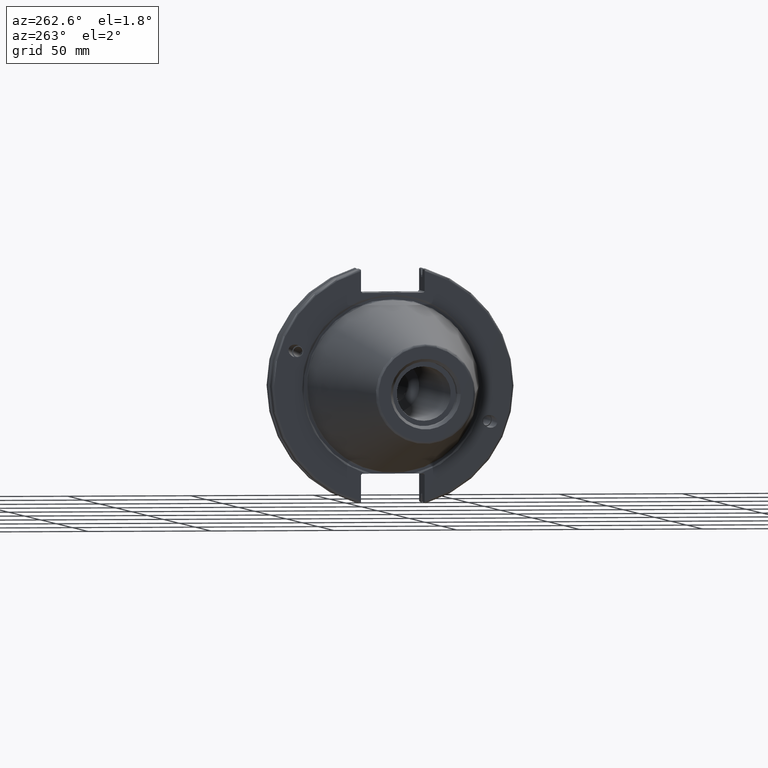
[diagram: clean part render]
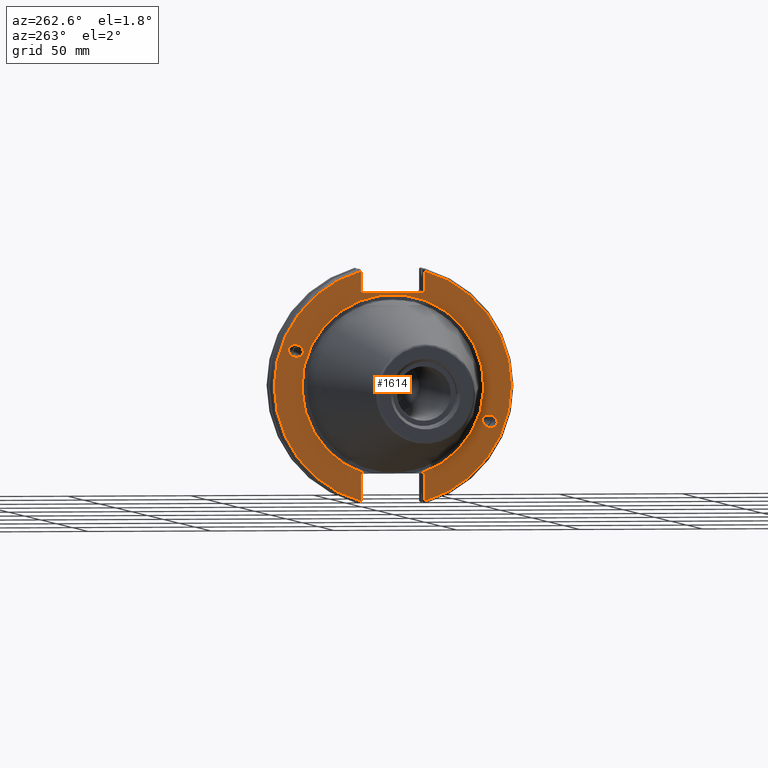
[diagram: same view with one face highlighted and labeled with its STEP entity id]
A machine part, auxiliary view. The second image highlights one B-rep face of the part: STEP entity #1614.
In plain terms, the highlighted planar face has unit normal (-1, 0, 0).
Its self-contained STEP definition (entity closure, byte-faithful):
#87=FACE_BOUND('',#335,.T.);
#88=FACE_BOUND('',#336,.T.);
#111=PLANE('',#1791);
#142=ELLIPSE('',#1737,3.05193647190365,2.50000000000001);
#143=ELLIPSE('',#1772,3.05193647190365,2.50000000000001);
#228=FACE_OUTER_BOUND('',#334,.T.);
#334=EDGE_LOOP('',(#1363,#1364,#1365,#1366,#1367,#1368,#1369,#1370,#1371,
#1372,#1373,#1374,#1375,#1376));
#335=EDGE_LOOP('',(#1377));
#336=EDGE_LOOP('',(#1378));
#429=LINE('',#3001,#527);
#432=LINE('',#3051,#530);
#440=LINE('',#3087,#538);
#444=LINE('',#3155,#542);
#445=LINE('',#3157,#543);
#446=LINE('',#3159,#544);
#447=LINE('',#3160,#545);
#448=LINE('',#3162,#546);
#449=LINE('',#3164,#547);
#450=LINE('',#3168,#548);
#451=LINE('',#3169,#549);
#527=VECTOR('',#2112,10.);
#530=VECTOR('',#2121,10.);
#538=VECTOR('',#2131,10.);
#542=VECTOR('',#2157,10.);
#543=VECTOR('',#2158,10.);
#544=VECTOR('',#2159,10.);
#545=VECTOR('',#2160,10.);
#546=VECTOR('',#2161,10.);
#547=VECTOR('',#2162,10.);
#548=VECTOR('',#2165,10.);
#549=VECTOR('',#2166,10.);
#627=CIRCLE('',#1783,48.2125);
#630=CIRCLE('',#1790,48.2125);
#631=CIRCLE('',#1792,37.);
#717=VERTEX_POINT('',#2688);
#756=VERTEX_POINT('',#2952);
#763=VERTEX_POINT('',#2998);
#764=VERTEX_POINT('',#3000);
#770=VERTEX_POINT('',#3048);
#771=VERTEX_POINT('',#3050);
#779=VERTEX_POINT('',#3079);
#780=VERTEX_POINT('',#3086);
#788=VERTEX_POINT('',#3145);
#789=VERTEX_POINT('',#3154);
#790=VERTEX_POINT('',#3156);
#791=VERTEX_POINT('',#3158);
#792=VERTEX_POINT('',#3161);
#793=VERTEX_POINT('',#3163);
#794=VERTEX_POINT('',#3165);
#795=VERTEX_POINT('',#3167);
#899=EDGE_CURVE('',#717,#717,#142,.T.);
#952=EDGE_CURVE('',#756,#756,#143,.T.);
#962=EDGE_CURVE('',#764,#763,#429,.T.);
#972=EDGE_CURVE('',#771,#770,#432,.T.);
#984=EDGE_CURVE('',#780,#779,#440,.T.);
#989=EDGE_CURVE('',#771,#779,#627,.T.);
#998=EDGE_CURVE('',#764,#788,#630,.T.);
#1000=EDGE_CURVE('',#789,#770,#444,.T.);
#1001=EDGE_CURVE('',#789,#790,#445,.T.);
#1002=EDGE_CURVE('',#791,#790,#446,.T.);
#1003=EDGE_CURVE('',#791,#788,#447,.T.);
#1004=EDGE_CURVE('',#792,#763,#448,.T.);
#1005=EDGE_CURVE('',#792,#793,#449,.T.);
#1006=EDGE_CURVE('',#793,#794,#631,.T.);
#1007=EDGE_CURVE('',#794,#795,#450,.T.);
#1008=EDGE_CURVE('',#780,#795,#451,.T.);
#1363=ORIENTED_EDGE('',*,*,#989,.F.);
#1364=ORIENTED_EDGE('',*,*,#972,.T.);
#1365=ORIENTED_EDGE('',*,*,#1000,.F.);
#1366=ORIENTED_EDGE('',*,*,#1001,.T.);
#1367=ORIENTED_EDGE('',*,*,#1002,.F.);
#1368=ORIENTED_EDGE('',*,*,#1003,.T.);
#1369=ORIENTED_EDGE('',*,*,#998,.F.);
#1370=ORIENTED_EDGE('',*,*,#962,.T.);
#1371=ORIENTED_EDGE('',*,*,#1004,.F.);
#1372=ORIENTED_EDGE('',*,*,#1005,.T.);
#1373=ORIENTED_EDGE('',*,*,#1006,.T.);
#1374=ORIENTED_EDGE('',*,*,#1007,.T.);
#1375=ORIENTED_EDGE('',*,*,#1008,.F.);
#1376=ORIENTED_EDGE('',*,*,#984,.T.);
#1377=ORIENTED_EDGE('',*,*,#899,.T.);
#1378=ORIENTED_EDGE('',*,*,#952,.T.);
#1614=ADVANCED_FACE('',(#228,#87,#88),#111,.T.);
#1737=AXIS2_PLACEMENT_3D('',#2690,#2013,#2014);
#1772=AXIS2_PLACEMENT_3D('',#2954,#2099,#2100);
#1783=AXIS2_PLACEMENT_3D('',#3109,#2137,#2138);
#1790=AXIS2_PLACEMENT_3D('',#3146,#2153,#2154);
#1791=AXIS2_PLACEMENT_3D('',#3153,#2155,#2156);
#1792=AXIS2_PLACEMENT_3D('',#3166,#2163,#2164);
#2013=DIRECTION('center_axis',(1.,0.,0.));
#2014=DIRECTION('ref_axis',(0.,-0.939692620785909,-0.342020143325667));
#2099=DIRECTION('center_axis',(1.,0.,0.));
#2100=DIRECTION('ref_axis',(0.,0.939692620785909,0.342020143325667));
#2112=DIRECTION('',(0.,0.,1.));
#2121=DIRECTION('',(0.,0.,-1.));
#2131=DIRECTION('',(0.,0.,-1.));
#2137=DIRECTION('center_axis',(1.,0.,0.));
#2138=DIRECTION('ref_axis',(0.,-1.,1.60812264967664E-16));
#2153=DIRECTION('center_axis',(1.,0.,0.));
#2154=DIRECTION('ref_axis',(0.,1.,-6.12323399573677E-17));
#2155=DIRECTION('center_axis',(-1.,0.,0.));
#2156=DIRECTION('ref_axis',(0.,0.,1.));
#2157=DIRECTION('',(0.,-0.707106781186549,0.707106781186546));
#2158=DIRECTION('',(0.,1.,0.));
#2159=DIRECTION('',(0.,-0.707106781186549,-0.707106781186546));
#2160=DIRECTION('',(0.,0.,1.));
#2161=DIRECTION('',(0.,0.707106781186548,-0.707106781186548));
#2162=DIRECTION('',(0.,-1.,0.));
#2163=DIRECTION('center_axis',(1.,0.,0.));
#2164=DIRECTION('ref_axis',(0.,0.,-1.));
#2165=DIRECTION('',(0.,-1.,0.));
#2166=DIRECTION('',(0.,0.707106781186549,0.707106781186546));
#2688=CARTESIAN_POINT('',(1.5,-36.5992078912529,-13.3210222701368));
#2690=CARTESIAN_POINT('Origin',(1.5,-39.4670900730082,-14.3648460196781));
#2952=CARTESIAN_POINT('',(1.5,36.5992078912529,13.3210222701368));
#2954=CARTESIAN_POINT('Origin',(1.5,39.4670900730082,14.3648460196781));
#2998=CARTESIAN_POINT('',(1.5,12.95,-35.806));
#3000=CARTESIAN_POINT('',(1.5,12.95,-46.4407434937254));
#3001=CARTESIAN_POINT('',(1.5,12.95,-17.653));
#3048=CARTESIAN_POINT('',(1.5,-12.95,38.219));
#3050=CARTESIAN_POINT('',(1.5,-12.95,46.4407434937254));
#3051=CARTESIAN_POINT('',(1.5,-12.95,18.8595));
#3079=CARTESIAN_POINT('',(1.5,-12.95,-46.4407434937254));
#3086=CARTESIAN_POINT('',(1.5,-12.95,-35.806));
#3087=CARTESIAN_POINT('',(1.5,-12.95,-17.653));
#3109=CARTESIAN_POINT('Origin',(1.5,0.,0.));
#3145=CARTESIAN_POINT('',(1.5,12.95,46.4407434937254));
#3146=CARTESIAN_POINT('Origin',(1.5,0.,0.));
#3153=CARTESIAN_POINT('Origin',(1.5,49.2125,0.));
#3154=CARTESIAN_POINT('',(1.5,-12.45,37.719));
#3155=CARTESIAN_POINT('',(1.5,12.2703750000001,12.998625));
#3156=CARTESIAN_POINT('',(1.5,12.45,37.719));
#3157=CARTESIAN_POINT('',(1.5,24.60625,37.719));
#3158=CARTESIAN_POINT('',(1.5,12.95,38.219));
#3159=CARTESIAN_POINT('',(1.5,12.335875,37.604875));
#3160=CARTESIAN_POINT('',(1.5,12.95,18.8595));
#3161=CARTESIAN_POINT('',(1.5,12.45,-35.306));
#3162=CARTESIAN_POINT('',(1.5,12.939125,-35.795125));
#3163=CARTESIAN_POINT('',(1.49999999999999,11.0673557817575,-35.306));
#3164=CARTESIAN_POINT('',(1.5,24.60625,-35.306));
#3165=CARTESIAN_POINT('',(1.5,-11.0673557817575,-35.306));
#3166=CARTESIAN_POINT('Origin',(1.5,0.,0.));
#3167=CARTESIAN_POINT('',(1.5,-12.45,-35.306));
#3168=CARTESIAN_POINT('',(1.5,24.60625,-35.306));
#3169=CARTESIAN_POINT('',(1.5,11.6671250000001,-11.188875));